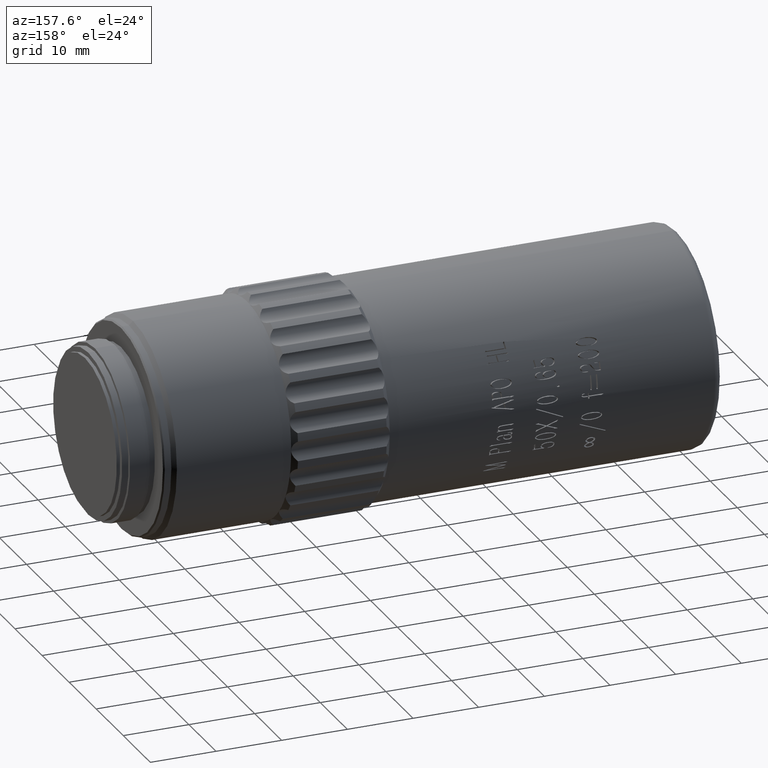
[diagram: clean part render]
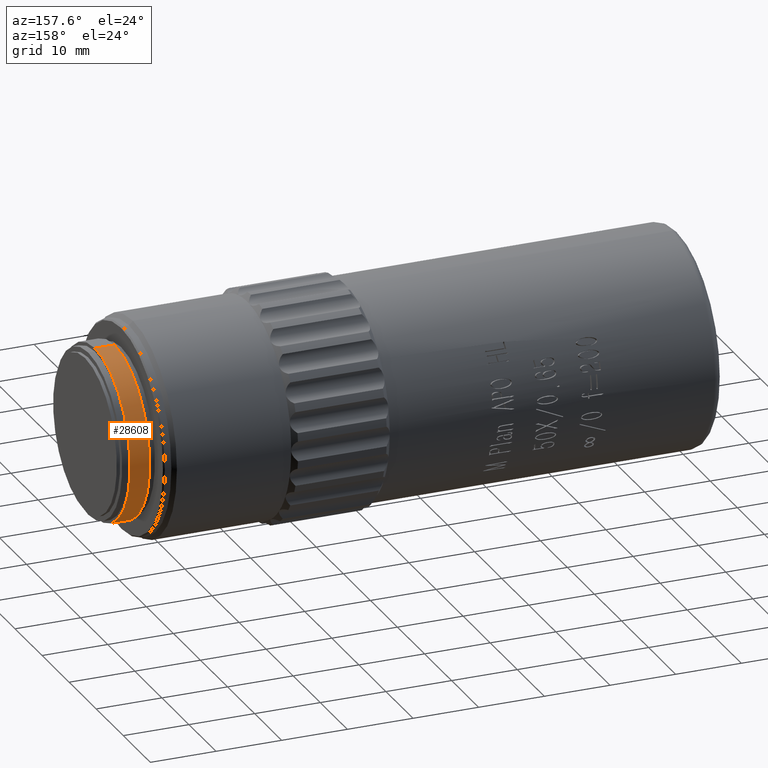
[diagram: same view with one face highlighted and labeled with its STEP entity id]
A machine part, auxiliary view. The second image highlights one B-rep face of the part: STEP entity #28608.
In plain terms, the highlighted cylindrical surface (partial cylindrical patch) has radius 13 mm, axis along (-1, -0, -0).
Its self-contained STEP definition (entity closure, byte-faithful):
#1962 = CYLINDRICAL_SURFACE ( 'NONE', #44228, 13.00000000000000000 ) ;
#2054 = VERTEX_POINT ( 'NONE', #23416 ) ;
#2105 = CARTESIAN_POINT ( 'NONE',  ( 89.59999999999999432, 0.000000000000000000, 13.00000000000000000 ) ) ;
#8085 = VECTOR ( 'NONE', #28957, 1000.000000000000000 ) ;
#10268 = VECTOR ( 'NONE', #10421, 1000.000000000000000 ) ;
#10421 = DIRECTION ( 'NONE',  ( -1.000000000000000000, -0.000000000000000000, -0.000000000000000000 ) ) ;
#12662 = DIRECTION ( 'NONE',  ( 0.000000000000000000, 0.000000000000000000, 1.000000000000000000 ) ) ;
#12691 = CARTESIAN_POINT ( 'NONE',  ( 89.59999999999999432, 0.000000000000000000, 0.000000000000000000 ) ) ;
#16351 = CARTESIAN_POINT ( 'NONE',  ( 86.59999999999999432, 0.000000000000000000, 0.000000000000000000 ) ) ;
#16355 = ORIENTED_EDGE ( 'NONE', *, *, #42764, .F. ) ;
#16563 = ORIENTED_EDGE ( 'NONE', *, *, #23961, .T. ) ;
#16712 = CIRCLE ( 'NONE', #20304, 13.00000000000000000 ) ;
#19355 = CARTESIAN_POINT ( 'NONE',  ( 86.59999999999999432, 1.592040838891559095E-15, -13.00000000000000000 ) ) ;
#20304 = AXIS2_PLACEMENT_3D ( 'NONE', #12691, #42146, #33363 ) ;
#23416 = CARTESIAN_POINT ( 'NONE',  ( 86.59999999999999432, 0.000000000000000000, 13.00000000000000000 ) ) ;
#23440 = LINE ( 'NONE', #31946, #10268 ) ;
#23961 = EDGE_CURVE ( 'NONE', #31010, #38520, #24157, .T. ) ;
#24157 = LINE ( 'NONE', #28679, #8085 ) ;
#26953 = ORIENTED_EDGE ( 'NONE', *, *, #52047, .T. ) ;
#27441 = CARTESIAN_POINT ( 'NONE',  ( 0.000000000000000000, 0.000000000000000000, 0.000000000000000000 ) ) ;
#28608 = ADVANCED_FACE ( 'NONE', ( #35413 ), #1962, .T. ) ;
#28679 = CARTESIAN_POINT ( 'NONE',  ( 0.000000000000000000, 1.592040838891559095E-15, -13.00000000000000000 ) ) ;
#28957 = DIRECTION ( 'NONE',  ( -1.000000000000000000, -0.000000000000000000, -0.000000000000000000 ) ) ;
#31010 = VERTEX_POINT ( 'NONE', #43460 ) ;
#31946 = CARTESIAN_POINT ( 'NONE',  ( 0.000000000000000000, 0.000000000000000000, 13.00000000000000000 ) ) ;
#33337 = DIRECTION ( 'NONE',  ( -1.000000000000000000, -0.000000000000000000, -0.000000000000000000 ) ) ;
#33363 = DIRECTION ( 'NONE',  ( 0.000000000000000000, 0.000000000000000000, 1.000000000000000000 ) ) ;
#35383 = VERTEX_POINT ( 'NONE', #2105 ) ;
#35413 = FACE_OUTER_BOUND ( 'NONE', #53770, .T. ) ;
#38520 = VERTEX_POINT ( 'NONE', #19355 ) ;
#39249 = CIRCLE ( 'NONE', #48293, 13.00000000000000000 ) ;
#40502 = DIRECTION ( 'NONE',  ( -1.000000000000000000, -0.000000000000000000, -0.000000000000000000 ) ) ;
#42146 = DIRECTION ( 'NONE',  ( -1.000000000000000000, -0.000000000000000000, -0.000000000000000000 ) ) ;
#42764 = EDGE_CURVE ( 'NONE', #2054, #38520, #39249, .T. ) ;
#43253 = EDGE_CURVE ( 'NONE', #35383, #2054, #23440, .T. ) ;
#43460 = CARTESIAN_POINT ( 'NONE',  ( 89.59999999999999432, 1.592040838891559095E-15, -13.00000000000000000 ) ) ;
#44228 = AXIS2_PLACEMENT_3D ( 'NONE', #27441, #40502, #52685 ) ;
#48293 = AXIS2_PLACEMENT_3D ( 'NONE', #16351, #33337, #12662 ) ;
#52047 = EDGE_CURVE ( 'NONE', #35383, #31010, #16712, .T. ) ;
#52685 = DIRECTION ( 'NONE',  ( 0.000000000000000000, 0.000000000000000000, 1.000000000000000000 ) ) ;
#53156 = ORIENTED_EDGE ( 'NONE', *, *, #43253, .F. ) ;
#53770 = EDGE_LOOP ( 'NONE', ( #26953, #16563, #16355, #53156 ) ) ;